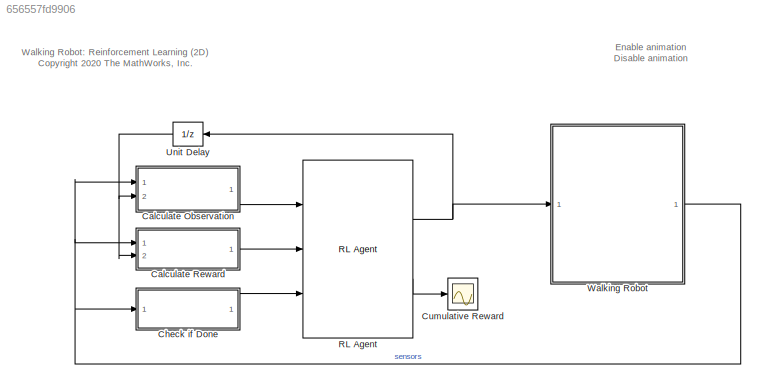
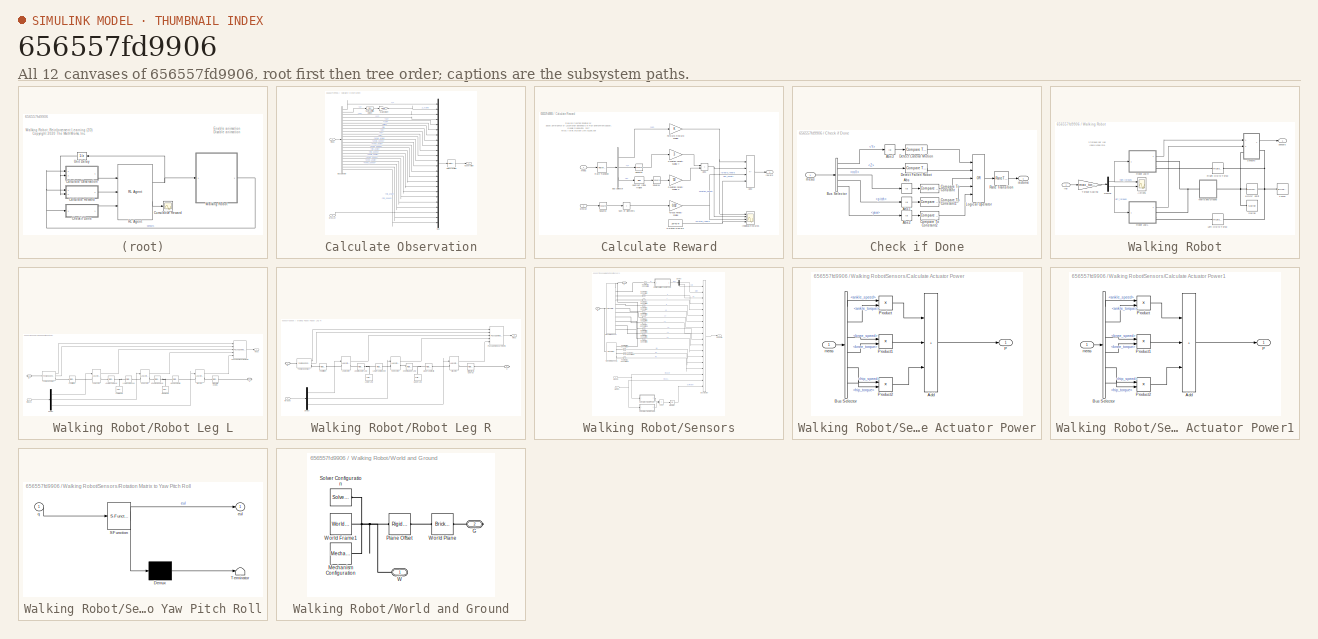
[diagram: thumbnail index - all 12 canvases of the model, root first then tree order]
MODEL slx_656557fd9906
KIND model
CONFIG AbsTol = auto
CONFIG EnableMultiTasking = on
CONFIG FixedStep = auto
CONFIG MaxStep = auto
CONFIG MinStep = auto
CONFIG RelTol = 1e-2
CONFIG SampleTimeConstraint = Unconstrained
CONFIG Solver = ode23t
CONFIG SolverName = ode23t
CONFIG StartTime = 0.0
CONFIG StopTime = Tf
BLOCK [SubSystem] Calculate Observation
  Ports = [2, 1]
  RequestExecContextInheritance = off
BLOCK [BusSelector] Calculate Observation/Bus Selector
  OutputSignals = Y,Z,VX,VY,VZ,yaw,pitch,roll,wx,wy,wz,measR.ankle_angle,measR.ankle_speed,measR.knee_angle,measR.knee_speed,measR.hip_angle,measR.hip_speed,measL.ankle_angle,measL.ankle_speed,measL.knee_angle,measL.knee_speed,measL.hip_angle,measL.hip_speed
  Ports = [1, 23]
BLOCK [Mux] Calculate Observation/Mux
  DisplayOption = bar
  Inputs = 24
  Ports = [24, 1]
BLOCK [RateTransition] Calculate Observation/Rate Transition
BLOCK [Gain] Calculate Observation/Scale Height
  Gain = 1/0.05
BLOCK [Bias] Calculate Observation/Subtract Initial Height
  Bias = -init_height/100
  SaturateOnIntegerOverflow = off
BLOCK [Inport] Calculate Observation/meas
BLOCK [Outport] Calculate Observation/observation
  VectorParamsAs1DForOutWhenUnconnected = off
BLOCK [Inport] Calculate Observation/prevAct
  Port = 2
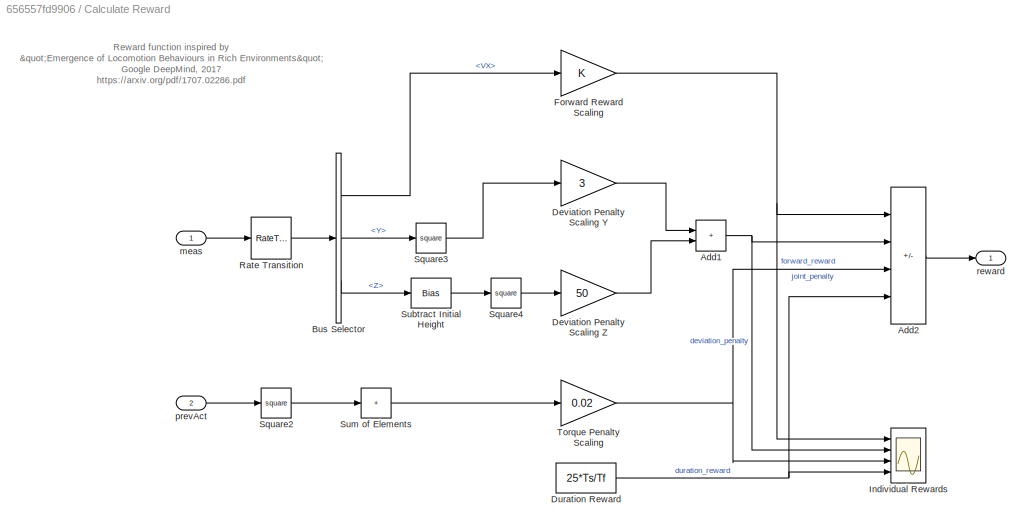
BLOCK [SubSystem] Calculate Reward
  Ports = [2, 1]
  RequestExecContextInheritance = off
BLOCK [Sum] Calculate Reward/Add1
  IconShape = rectangular
  Ports = [2, 1]
BLOCK [Sum] Calculate Reward/Add2
  IconShape = rectangular
  Inputs = +--+
  Ports = [4, 1]
BLOCK [BusSelector] Calculate Reward/Bus Selector
  OutputSignals = VX,Y,Z
  Ports = [1, 3]
BLOCK [Gain] Calculate Reward/Deviation Penalty Scaling Y
  Gain = 3
BLOCK [Gain] Calculate Reward/Deviation Penalty Scaling Z
  Gain = 50
BLOCK [Constant] Calculate Reward/Duration Reward
  Value = 25*Ts/Tf
BLOCK [Gain] Calculate Reward/Forward Reward Scaling
BLOCK [Scope] Calculate Reward/Individual Rewards
  Floating = off
  NumInputPorts = 4
  Ports = [4]
  ScopeSpecificationString = Simulink.scopes.TimeScopeBlockCfg('CurrentConfiguration', extmgr.ConfigurationSet(extmgr.Configuration('Core','General UI',true),extmgr.Configuration('Core','Source UI',true),extmgr.Configuration('Sources','WiredSimulink',true,'DataLoggingVariableName','ScopeData1'),extmgr.Configuration('Visuals','Time Domain',true,'SerializedDisplays',{struct('MinYLimReal','-0.10269','MaxYLimReal','0.92421','YLab...<+1411ch>
BLOCK [RateTransition] Calculate Reward/Rate Transition
  OutPortSampleTime = Ts
BLOCK [Math] Calculate Reward/Square2
  Operator = square
  Ports = [1, 1]
  SignedPower = on
BLOCK [Math] Calculate Reward/Square3
  Operator = square
  Ports = [1, 1]
  SignedPower = on
BLOCK [Math] Calculate Reward/Square4
  Operator = square
  Ports = [1, 1]
  SignedPower = on
BLOCK [Bias] Calculate Reward/Subtract Initial Height
  Bias = -init_height/100
  SaturateOnIntegerOverflow = off
BLOCK [Sum] Calculate Reward/Sum of Elements
  IconShape = rectangular
  Inputs = +
  Ports = [1, 1]
BLOCK [Gain] Calculate Reward/Torque Penalty Scaling
  Gain = 0.02
BLOCK [Inport] Calculate Reward/meas
BLOCK [Inport] Calculate Reward/prevAct
  Port = 2
BLOCK [Outport] Calculate Reward/reward
  VectorParamsAs1DForOutWhenUnconnected = off
BLOCK [SubSystem] Check if Done
  Ports = [1, 1]
  RequestExecContextInheritance = off
BLOCK [Abs] Check if Done/Abs
  SaturateOnIntegerOverflow = off
BLOCK [Abs] Check if Done/Abs1
  SaturateOnIntegerOverflow = off
BLOCK [Abs] Check if Done/Abs2
  SaturateOnIntegerOverflow = off
BLOCK [Abs] Check if Done/Abs3
  SaturateOnIntegerOverflow = off
BLOCK [BusSelector] Check if Done/Bus Selector
  OutputSignals = Y,Z,roll,pitch,yaw
  Ports = [1, 5]
BLOCK [Reference] Check if Done/Compare To Constant  REF=simulink/Logic and Bit
Operations/Compare
To Constant
  Ports = [1, 1]
  SourceBlock = simulink/Logic and Bit\nOperations/Compare\nTo Constant
  SourceProductBaseCode = SL
  SourceType = Compare To Constant
BLOCK [Reference] Check if Done/Compare To Constant1  REF=simulink/Logic and Bit
Operations/Compare
To Constant
  Ports = [1, 1]
  SourceBlock = simulink/Logic and Bit\nOperations/Compare\nTo Constant
  SourceProductBaseCode = SL
  SourceType = Compare To Constant
BLOCK [Reference] Check if Done/Compare To Constant2  REF=simulink/Logic and Bit
Operations/Compare
To Constant
  Ports = [1, 1]
  SourceBlock = simulink/Logic and Bit\nOperations/Compare\nTo Constant
  SourceProductBaseCode = SL
  SourceType = Compare To Constant
BLOCK [Reference] Check if Done/Detect Fallen Robot  REF=simulink/Logic and Bit
Operations/Compare
To Constant
  Ports = [1, 1]
  SourceBlock = simulink/Logic and Bit\nOperations/Compare\nTo Constant
  SourceProductBaseCode = SL
  SourceType = Compare To Constant
BLOCK [Reference] Check if Done/Detect Lateral Motion  REF=simulink/Logic and Bit
Operations/Compare
To Constant
  Ports = [1, 1]
  SourceBlock = simulink/Logic and Bit\nOperations/Compare\nTo Constant
  SourceProductBaseCode = SL
  SourceType = Compare To Constant
BLOCK [Logic] Check if Done/Logical Operator
  AllPortsSameDT = off
  Inputs = 5
  Operator = OR
  OutDataTypeStr = boolean
  Ports = [5, 1]
BLOCK [RateTransition] Check if Done/Rate Transition
BLOCK [Outport] Check if Done/isdone
  VectorParamsAs1DForOutWhenUnconnected = off
BLOCK [Inport] Check if Done/meas
BLOCK [Scope] Cumulative Reward
  Floating = off
  NumInputPorts = 1
  Ports = [1]
  ScopeSpecificationString = Simulink.scopes.TimeScopeBlockCfg('CurrentConfiguration', extmgr.ConfigurationSet(extmgr.Configuration('Core','General UI',true),extmgr.Configuration('Core','Source UI',true),extmgr.Configuration('Sources','WiredSimulink',true),extmgr.Configuration('Visuals','Time Domain',true,'SerializedDisplays',{struct('MinYLimReal','-10.78489','MaxYLimReal','97.06402','YLabelReal','','MinYLimMag','0.00000','Ma...<+1380ch>
BLOCK [Reference] RL Agent  REF=rllib/RL Agent
  Ports = [3, 2]
  SourceBlock = rllib/RL Agent
  SourceProductBaseCode = RL
  SourceType = RL Agent
BLOCK [UnitDelay] Unit Delay
  HasFrameUpgradeWarning = on
  SampleTime = -1
BLOCK [SubSystem] Walking Robot
  Ports = [1, 1]
  RequestExecContextInheritance = off
BLOCK [Reference] Walking Robot/6-DOF Joint  REF=sm_lib/Joints/6-DOF Joint
  Ports = [0, 0, 0, 0, 0, 1, 1]
  SourceBlock = sm_lib/Joints/6-DOF Joint
  SourceProductBaseCode = MS
  SourceType = 6-DOF Joint
BLOCK [Scope] Walking Robot/Actions
  Floating = off
  NumInputPorts = 2
  Ports = [2]
  ScopeSpecificationString = Simulink.scopes.TimeScopeBlockCfg('CurrentConfiguration', extmgr.ConfigurationSet(extmgr.Configuration('Core','General UI',true),extmgr.Configuration('Core','Source UI',true),extmgr.Configuration('Sources','WiredSimulink',true,'DataLoggingVariableName','ScopeData1'),extmgr.Configuration('Visuals','Time Domain',true,'SerializedDisplays',{struct('MinYLimReal','-3.75','MaxYLimReal','3.75','YLabelReal...<+2095ch>
BLOCK [Demux] Walking Robot/Demux
  Outputs = 2
  Ports = [1, 2]
BLOCK [Reference] Walking Robot/Left Hip to Torso  REF=sm_lib/Frames and
Transforms/Rigid
Transform
  Ports = [0, 0, 0, 0, 0, 1, 1]
  SourceBlock = sm_lib/Frames and\nTransforms/Rigid\nTransform
  SourceProductBaseCode = MS
  SourceType = Rigid\nTransform
BLOCK [Reference] Walking Robot/Right Hip to Torso  REF=sm_lib/Frames and
Transforms/Rigid
Transform
  Ports = [0, 0, 0, 0, 0, 1, 1]
  SourceBlock = sm_lib/Frames and\nTransforms/Rigid\nTransform
  SourceProductBaseCode = MS
  SourceType = Rigid\nTransform
BLOCK [SubSystem] Walking Robot/Robot Leg L
  Ports = [1, 1, 0, 0, 0, 0, 2]
  RequestExecContextInheritance = off
BLOCK [Reference] Walking Robot/Robot Leg L/Ankle Joint  REF=walkingRobotUtils/Leg Joint with Limits
  Ports = [1, 1, 0, 0, 0, 1, 1]
  SourceBlock = walkingRobotUtils/Leg Joint with Limits
  SourceType = Leg Joint with Limits
BLOCK [Reference] Walking Robot/Robot Leg L/Ankle to Lower Leg  REF=sm_lib/Frames and
Transforms/Rigid
Transform
  Ports = [0, 0, 0, 0, 0, 1, 1]
  SourceBlock = sm_lib/Frames and\nTransforms/Rigid\nTransform
  SourceProductBaseCode = MS
  SourceType = Rigid\nTransform
BLOCK [Demux] Walking Robot/Robot Leg L/Demux
  Outputs = 3
  Ports = [1, 3]
BLOCK [Reference] Walking Robot/Robot Leg L/Foot Offset  REF=sm_lib/Frames and
Transforms/Rigid
Transform
  Ports = [0, 0, 0, 0, 0, 1, 1]
  SourceBlock = sm_lib/Frames and\nTransforms/Rigid\nTransform
  SourceProductBaseCode = MS
  SourceType = Rigid\nTransform
BLOCK [Reference] Walking Robot/Robot Leg L/Foot and Contact  REF=walkingRobotUtils/Foot and Contact
  Ports = [0, 2, 0, 0, 0, 1, 1]
  SourceBlock = walkingRobotUtils/Foot and Contact
  SourceType = SubSystem
BLOCK [PMIOPort] Walking Robot/Robot Leg L/G
  Side = Right
BLOCK [PMIOPort] Walking Robot/Robot Leg L/H
  Port = 2
  Side = Right
BLOCK [Reference] Walking Robot/Robot Leg L/Hip Joint  REF=walkingRobotUtils/Leg Joint with Limits
  Ports = [1, 1, 0, 0, 0, 1, 1]
  SourceBlock = walkingRobotUtils/Leg Joint with Limits
  SourceType = Leg Joint with Limits
BLOCK [Reference] Walking Robot/Robot Leg L/Hip to World Coords  REF=sm_lib/Frames and
Transforms/Rigid
Transform
  Ports = [0, 0, 0, 0, 0, 1, 1]
  SourceBlock = sm_lib/Frames and\nTransforms/Rigid\nTransform
  SourceProductBaseCode = MS
  SourceType = Rigid\nTransform
BLOCK [Reference] Walking Robot/Robot Leg L/Knee Joint  REF=walkingRobotUtils/Leg Joint with Limits
  Ports = [1, 1, 0, 0, 0, 1, 1]
  SourceBlock = walkingRobotUtils/Leg Joint with Limits
  SourceType = Leg Joint with Limits
BLOCK [Reference] Walking Robot/Robot Leg L/Knee to Upper Leg  REF=sm_lib/Frames and
Transforms/Rigid
Transform
  Ports = [0, 0, 0, 0, 0, 1, 1]
  SourceBlock = sm_lib/Frames and\nTransforms/Rigid\nTransform
  SourceProductBaseCode = MS
  SourceType = Rigid\nTransform
BLOCK [Reference] Walking Robot/Robot Leg L/Lower Leg  REF=sm_lib/Body Elements/Cylindrical Solid
  NameLocation = right
  Ports = [0, 0, 0, 0, 0, 0, 1]
  SourceBlock = sm_lib/Body Elements/Cylindrical Solid
  SourceProductBaseCode = MS
  SourceType = Cylindrical Solid
BLOCK [Reference] Walking Robot/Robot Leg L/Lower Leg to Knee  REF=sm_lib/Frames and
Transforms/Rigid
Transform
  Ports = [0, 0, 0, 0, 0, 1, 1]
  SourceBlock = sm_lib/Frames and\nTransforms/Rigid\nTransform
  SourceProductBaseCode = MS
  SourceType = Rigid\nTransform
BLOCK [Reference] Walking Robot/Robot Leg L/Package Measurements  REF=walkingRobotUtils/Package 
Measurements 2D
  Ports = [5, 1]
  SourceBlock = walkingRobotUtils/Package \nMeasurements 2D
  SourceType = SubSystem
BLOCK [Reference] Walking Robot/Robot Leg L/Upper Leg  REF=sm_lib/Body Elements/Cylindrical Solid
  NameLocation = right
  Ports = [0, 0, 0, 0, 0, 0, 1]
  SourceBlock = sm_lib/Body Elements/Cylindrical Solid
  SourceProductBaseCode = MS
  SourceType = Cylindrical Solid
BLOCK [Reference] Walking Robot/Robot Leg L/Upper Leg to Hip  REF=sm_lib/Frames and
Transforms/Rigid
Transform
  Ports = [0, 0, 0, 0, 0, 1, 1]
  SourceBlock = sm_lib/Frames and\nTransforms/Rigid\nTransform
  SourceProductBaseCode = MS
  SourceType = Rigid\nTransform
BLOCK [Outport] Walking Robot/Robot Leg L/meas
  VectorParamsAs1DForOutWhenUnconnected = off
BLOCK [Inport] Walking Robot/Robot Leg L/torques
BLOCK [SubSystem] Walking Robot/Robot Leg R
  Ports = [1, 1, 0, 0, 0, 0, 2]
  RequestExecContextInheritance = off
BLOCK [Reference] Walking Robot/Robot Leg R/Ankle Joint  REF=walkingRobotUtils/Leg Joint with Limits
  Ports = [1, 1, 0, 0, 0, 1, 1]
  SourceBlock = walkingRobotUtils/Leg Joint with Limits
  SourceType = Leg Joint with Limits
BLOCK [Reference] Walking Robot/Robot Leg R/Ankle to Lower Leg  REF=sm_lib/Frames and
Transforms/Rigid
Transform
  Ports = [0, 0, 0, 0, 0, 1, 1]
  SourceBlock = sm_lib/Frames and\nTransforms/Rigid\nTransform
  SourceProductBaseCode = MS
  SourceType = Rigid\nTransform
BLOCK [Demux] Walking Robot/Robot Leg R/Demux
  Outputs = 3
  Ports = [1, 3]
BLOCK [Reference] Walking Robot/Robot Leg R/Foot Offset  REF=sm_lib/Frames and
Transforms/Rigid
Transform
  Ports = [0, 0, 0, 0, 0, 1, 1]
  SourceBlock = sm_lib/Frames and\nTransforms/Rigid\nTransform
  SourceProductBaseCode = MS
  SourceType = Rigid\nTransform
BLOCK [Reference] Walking Robot/Robot Leg R/Foot and Contact  REF=walkingRobotUtils/Foot and Contact
  Ports = [0, 2, 0, 0, 0, 1, 1]
  SourceBlock = walkingRobotUtils/Foot and Contact
  SourceType = SubSystem
BLOCK [PMIOPort] Walking Robot/Robot Leg R/G
  Side = Right
BLOCK [PMIOPort] Walking Robot/Robot Leg R/H
  Port = 2
  Side = Right
BLOCK [Reference] Walking Robot/Robot Leg R/Hip Joint  REF=walkingRobotUtils/Leg Joint with Limits
  Ports = [1, 1, 0, 0, 0, 1, 1]
  SourceBlock = walkingRobotUtils/Leg Joint with Limits
  SourceType = Leg Joint with Limits
BLOCK [Reference] Walking Robot/Robot Leg R/Hip to World Coords  REF=sm_lib/Frames and
Transforms/Rigid
Transform
  Ports = [0, 0, 0, 0, 0, 1, 1]
  SourceBlock = sm_lib/Frames and\nTransforms/Rigid\nTransform
  SourceProductBaseCode = MS
  SourceType = Rigid\nTransform
BLOCK [Reference] Walking Robot/Robot Leg R/Knee Joint  REF=walkingRobotUtils/Leg Joint with Limits
  Ports = [1, 1, 0, 0, 0, 1, 1]
  SourceBlock = walkingRobotUtils/Leg Joint with Limits
  SourceType = Leg Joint with Limits
BLOCK [Reference] Walking Robot/Robot Leg R/Knee to Upper Leg  REF=sm_lib/Frames and
Transforms/Rigid
Transform
  Ports = [0, 0, 0, 0, 0, 1, 1]
  SourceBlock = sm_lib/Frames and\nTransforms/Rigid\nTransform
  SourceProductBaseCode = MS
  SourceType = Rigid\nTransform
BLOCK [Reference] Walking Robot/Robot Leg R/Lower Leg  REF=sm_lib/Body Elements/Cylindrical Solid
  NameLocation = right
  Ports = [0, 0, 0, 0, 0, 0, 1]
  SourceBlock = sm_lib/Body Elements/Cylindrical Solid
  SourceProductBaseCode = MS
  SourceType = Cylindrical Solid
BLOCK [Reference] Walking Robot/Robot Leg R/Lower Leg to Knee  REF=sm_lib/Frames and
Transforms/Rigid
Transform
  Ports = [0, 0, 0, 0, 0, 1, 1]
  SourceBlock = sm_lib/Frames and\nTransforms/Rigid\nTransform
  SourceProductBaseCode = MS
  SourceType = Rigid\nTransform
BLOCK [Reference] Walking Robot/Robot Leg R/Package Measurements  REF=walkingRobotUtils/Package 
Measurements 2D
  Ports = [5, 1]
  SourceBlock = walkingRobotUtils/Package \nMeasurements 2D
  SourceType = SubSystem
BLOCK [Reference] Walking Robot/Robot Leg R/Upper Leg  REF=sm_lib/Body Elements/Cylindrical Solid
  NameLocation = right
  Ports = [0, 0, 0, 0, 0, 0, 1]
  SourceBlock = sm_lib/Body Elements/Cylindrical Solid
  SourceProductBaseCode = MS
  SourceType = Cylindrical Solid
BLOCK [Reference] Walking Robot/Robot Leg R/Upper Leg to Hip  REF=sm_lib/Frames and
Transforms/Rigid
Transform
  Ports = [0, 0, 0, 0, 0, 1, 1]
  SourceBlock = sm_lib/Frames and\nTransforms/Rigid\nTransform
  SourceProductBaseCode = MS
  SourceType = Rigid\nTransform
BLOCK [Outport] Walking Robot/Robot Leg R/meas
  VectorParamsAs1DForOutWhenUnconnected = off
BLOCK [Inport] Walking Robot/Robot Leg R/torques
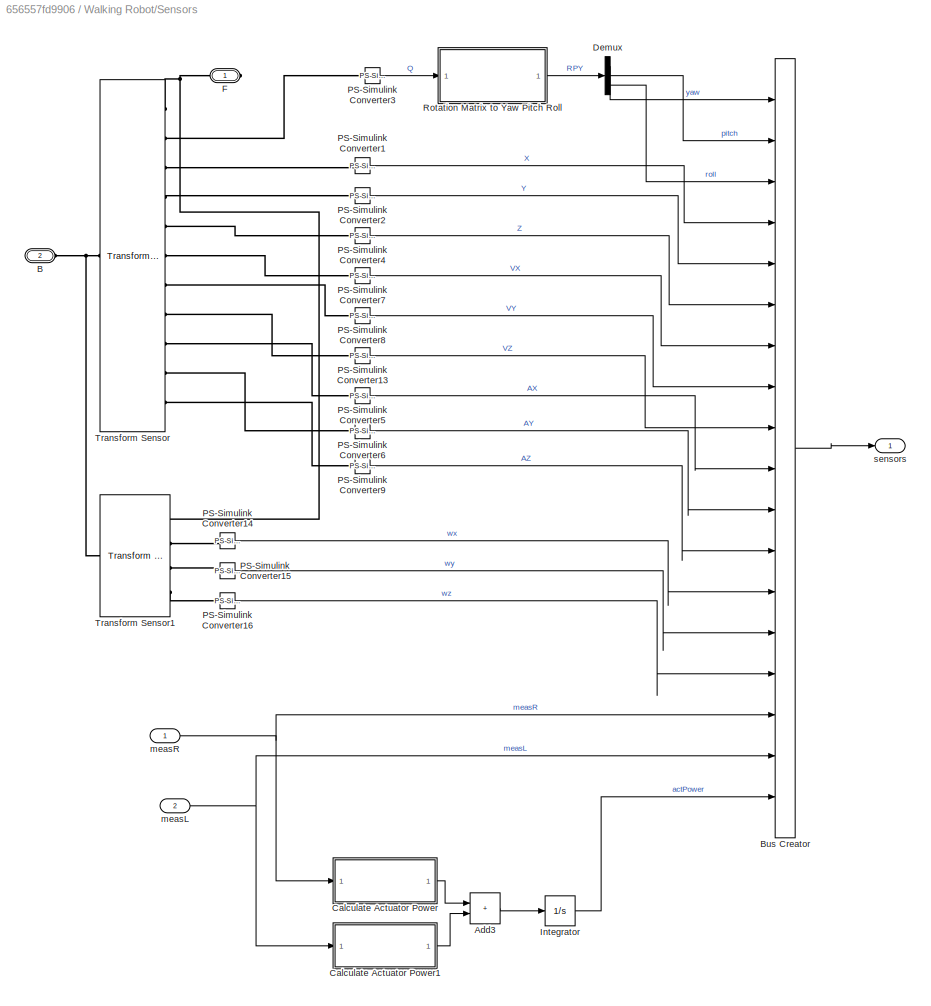
BLOCK [SubSystem] Walking Robot/Sensors
  Ports = [2, 1, 0, 0, 0, 1, 1]
  RequestExecContextInheritance = off
BLOCK [Sum] Walking Robot/Sensors/Add3
  IconShape = rectangular
  Ports = [2, 1]
BLOCK [PMIOPort] Walking Robot/Sensors/B
  Port = 2
  Side = Left
BLOCK [BusCreator] Walking Robot/Sensors/Bus Creator
  DisplayOption = bar
  InheritFromInputs = on
  Inputs = 18
  Ports = [18, 1]
BLOCK [SubSystem] Walking Robot/Sensors/Calculate Actuator Power
  Ports = [1, 1]
  RequestExecContextInheritance = off
BLOCK [Sum] Walking Robot/Sensors/Calculate Actuator Power/Add
  IconShape = rectangular
  Inputs = 3
  Ports = [3, 1]
BLOCK [BusSelector] Walking Robot/Sensors/Calculate Actuator Power/Bus Selector
  OutputSignals = ankle_speed,ankle_torque,knee_speed,knee_torque,hip_speed,hip_torque
  Ports = [1, 6]
BLOCK [Outport] Walking Robot/Sensors/Calculate Actuator Power/P
  VectorParamsAs1DForOutWhenUnconnected = off
BLOCK [Product] Walking Robot/Sensors/Calculate Actuator Power/Product
  Ports = [2, 1]
BLOCK [Product] Walking Robot/Sensors/Calculate Actuator Power/Product1
  Ports = [2, 1]
BLOCK [Product] Walking Robot/Sensors/Calculate Actuator Power/Product2
  Ports = [2, 1]
BLOCK [Inport] Walking Robot/Sensors/Calculate Actuator Power/meas
BLOCK [SubSystem] Walking Robot/Sensors/Calculate Actuator Power1
  Ports = [1, 1]
  RequestExecContextInheritance = off
BLOCK [Sum] Walking Robot/Sensors/Calculate Actuator Power1/Add
  IconShape = rectangular
  Inputs = 3
  Ports = [3, 1]
BLOCK [BusSelector] Walking Robot/Sensors/Calculate Actuator Power1/Bus Selector
  OutputSignals = ankle_speed,ankle_torque,knee_speed,knee_torque,hip_speed,hip_torque
  Ports = [1, 6]
BLOCK [Outport] Walking Robot/Sensors/Calculate Actuator Power1/P
  VectorParamsAs1DForOutWhenUnconnected = off
BLOCK [Product] Walking Robot/Sensors/Calculate Actuator Power1/Product
  Ports = [2, 1]
BLOCK [Product] Walking Robot/Sensors/Calculate Actuator Power1/Product1
  Ports = [2, 1]
BLOCK [Product] Walking Robot/Sensors/Calculate Actuator Power1/Product2
  Ports = [2, 1]
BLOCK [Inport] Walking Robot/Sensors/Calculate Actuator Power1/meas
BLOCK [Demux] Walking Robot/Sensors/Demux
  Outputs = 3
  Ports = [1, 3]
BLOCK [PMIOPort] Walking Robot/Sensors/F
  Side = Right
BLOCK [Integrator] Walking Robot/Sensors/Integrator
  Ports = [1, 1]
BLOCK [Reference] Walking Robot/Sensors/PS-Simulink Converter1  REF=nesl_utility/PS-Simulink
Converter
  Ports = [0, 1, 0, 0, 0, 1]
  SourceBlock = nesl_utility/PS-Simulink\nConverter
  SourceProductBaseCode = MT,SS
  SourceType = PS-Simulink\nConverter
BLOCK [Reference] Walking Robot/Sensors/PS-Simulink Converter13  REF=nesl_utility/PS-Simulink
Converter
  Ports = [0, 1, 0, 0, 0, 1]
  SourceBlock = nesl_utility/PS-Simulink\nConverter
  SourceProductBaseCode = MT,SS
  SourceType = PS-Simulink\nConverter
BLOCK [Reference] Walking Robot/Sensors/PS-Simulink Converter14  REF=nesl_utility/PS-Simulink
Converter
  Ports = [0, 1, 0, 0, 0, 1]
  SourceBlock = nesl_utility/PS-Simulink\nConverter
  SourceProductBaseCode = MT,SS
  SourceType = PS-Simulink\nConverter
BLOCK [Reference] Walking Robot/Sensors/PS-Simulink Converter15  REF=nesl_utility/PS-Simulink
Converter
  Ports = [0, 1, 0, 0, 0, 1]
  SourceBlock = nesl_utility/PS-Simulink\nConverter
  SourceProductBaseCode = MT,SS
  SourceType = PS-Simulink\nConverter
BLOCK [Reference] Walking Robot/Sensors/PS-Simulink Converter16  REF=nesl_utility/PS-Simulink
Converter
  Ports = [0, 1, 0, 0, 0, 1]
  SourceBlock = nesl_utility/PS-Simulink\nConverter
  SourceProductBaseCode = MT,SS
  SourceType = PS-Simulink\nConverter
BLOCK [Reference] Walking Robot/Sensors/PS-Simulink Converter2  REF=nesl_utility/PS-Simulink
Converter
  Ports = [0, 1, 0, 0, 0, 1]
  SourceBlock = nesl_utility/PS-Simulink\nConverter
  SourceProductBaseCode = MT,SS
  SourceType = PS-Simulink\nConverter
BLOCK [Reference] Walking Robot/Sensors/PS-Simulink Converter3  REF=nesl_utility/PS-Simulink
Converter
  Ports = [0, 1, 0, 0, 0, 1]
  SourceBlock = nesl_utility/PS-Simulink\nConverter
  SourceProductBaseCode = MT,SS
  SourceType = PS-Simulink\nConverter
BLOCK [Reference] Walking Robot/Sensors/PS-Simulink Converter4  REF=nesl_utility/PS-Simulink
Converter
  Ports = [0, 1, 0, 0, 0, 1]
  SourceBlock = nesl_utility/PS-Simulink\nConverter
  SourceProductBaseCode = MT,SS
  SourceType = PS-Simulink\nConverter
BLOCK [Reference] Walking Robot/Sensors/PS-Simulink Converter5  REF=nesl_utility/PS-Simulink
Converter
  Ports = [0, 1, 0, 0, 0, 1]
  SourceBlock = nesl_utility/PS-Simulink\nConverter
  SourceProductBaseCode = MT,SS
  SourceType = PS-Simulink\nConverter
BLOCK [Reference] Walking Robot/Sensors/PS-Simulink Converter6  REF=nesl_utility/PS-Simulink
Converter
  Ports = [0, 1, 0, 0, 0, 1]
  SourceBlock = nesl_utility/PS-Simulink\nConverter
  SourceProductBaseCode = MT,SS
  SourceType = PS-Simulink\nConverter
BLOCK [Reference] Walking Robot/Sensors/PS-Simulink Converter7  REF=nesl_utility/PS-Simulink
Converter
  Ports = [0, 1, 0, 0, 0, 1]
  SourceBlock = nesl_utility/PS-Simulink\nConverter
  SourceProductBaseCode = MT,SS
  SourceType = PS-Simulink\nConverter
BLOCK [Reference] Walking Robot/Sensors/PS-Simulink Converter8  REF=nesl_utility/PS-Simulink
Converter
  Ports = [0, 1, 0, 0, 0, 1]
  SourceBlock = nesl_utility/PS-Simulink\nConverter
  SourceProductBaseCode = MT,SS
  SourceType = PS-Simulink\nConverter
BLOCK [Reference] Walking Robot/Sensors/PS-Simulink Converter9  REF=nesl_utility/PS-Simulink
Converter
  Ports = [0, 1, 0, 0, 0, 1]
  SourceBlock = nesl_utility/PS-Simulink\nConverter
  SourceProductBaseCode = MT,SS
  SourceType = PS-Simulink\nConverter
BLOCK [SubSystem] Walking Robot/Sensors/Rotation Matrix to Yaw Pitch Roll
  ErrorFcn = Stateflow.Translate.translate
  PermitHierarchicalResolution = ExplicitOnly
  Ports = [1, 1]
  RequestExecContextInheritance = off
  SFBlockType = MATLAB Function
  TreatAsAtomicUnit = on
BLOCK [Demux] Walking Robot/Sensors/Rotation Matrix to Yaw Pitch Roll/ Demux 
  Outputs = 1
  Ports = [1, 1]
BLOCK [S-Function] Walking Robot/Sensors/Rotation Matrix to Yaw Pitch Roll/ SFunction 
  EnableBusSupport = off
  FunctionName = sf_sfun
  PortCounts = [1 2]
  Ports = [1, 2]
  SFcnIsStateOwnerBlock = off
  SFunctionDeploymentMode = off
  Tag = Stateflow S-Function 1
BLOCK [Terminator] Walking Robot/Sensors/Rotation Matrix to Yaw Pitch Roll/ Terminator 
BLOCK [Outport] Walking Robot/Sensors/Rotation Matrix to Yaw Pitch Roll/eul
  VectorParamsAs1DForOutWhenUnconnected = off
BLOCK [Inport] Walking Robot/Sensors/Rotation Matrix to Yaw Pitch Roll/q
BLOCK [Reference] Walking Robot/Sensors/Transform Sensor  REF=sm_lib/Frames and
Transforms/Transform
Sensor
  Ports = [0, 0, 0, 0, 0, 1, 11]
  SourceBlock = sm_lib/Frames and\nTransforms/Transform\nSensor
  SourceProductBaseCode = MS
  SourceType = Transform\nSensor
BLOCK [Reference] Walking Robot/Sensors/Transform Sensor1  REF=sm_lib/Frames and
Transforms/Transform
Sensor
  Ports = [0, 0, 0, 0, 0, 1, 4]
  SourceBlock = sm_lib/Frames and\nTransforms/Transform\nSensor
  SourceProductBaseCode = MS
  SourceType = Transform\nSensor
BLOCK [Inport] Walking Robot/Sensors/measL
  Port = 2
BLOCK [Inport] Walking Robot/Sensors/measR
BLOCK [Outport] Walking Robot/Sensors/sensors
  VectorParamsAs1DForOutWhenUnconnected = off
BLOCK [Reference] Walking Robot/Spline  REF=sm_lib/Curves and Surfaces/Spline
  Ports = [0, 0, 0, 0, 0, 1, 1]
  SourceBlock = sm_lib/Curves and Surfaces/Spline
  SourceProductBaseCode = MS
  SourceType = Spline
BLOCK [Gain] Walking Robot/Torque Scaling
  Gain = max_torque
BLOCK [Reference] Walking Robot/Torso  REF=sm_lib/Body Elements/Brick Solid
  Ports = [0, 0, 0, 0, 0, 0, 1]
  SourceBlock = sm_lib/Body Elements/Brick Solid
  SourceProductBaseCode = MS
  SourceType = Brick Solid
BLOCK [SubSystem] Walking Robot/World and Ground
  Ports = [0, 0, 0, 0, 0, 1, 1]
  RequestExecContextInheritance = off
BLOCK [PMIOPort] Walking Robot/World and Ground/G
  Port = 2
  Side = Right
BLOCK [Reference] Walking Robot/World and Ground/Mechanism Configuration  REF=sm_lib/Utilities/Mechanism
Configuration
  Ports = [0, 0, 0, 0, 0, 0, 1]
  SourceBlock = sm_lib/Utilities/Mechanism\nConfiguration
  SourceProductBaseCode = MS
  SourceType = Mechanism\nConfiguration
BLOCK [Reference] Walking Robot/World and Ground/Plane Offset  REF=sm_lib/Frames and
Transforms/Rigid
Transform
  Ports = [0, 0, 0, 0, 0, 1, 1]
  SourceBlock = sm_lib/Frames and\nTransforms/Rigid\nTransform
  SourceProductBaseCode = MS
  SourceType = Rigid\nTransform
BLOCK [Reference] Walking Robot/World and Ground/Solver Configuration  REF=nesl_utility/Solver
Configuration
  Ports = [0, 0, 0, 0, 0, 0, 1]
  SourceBlock = nesl_utility/Solver\nConfiguration
  SourceProductBaseCode = MT,SS
  SourceType = Solver\nConfiguration
BLOCK [PMIOPort] Walking Robot/World and Ground/W
  Side = Left
BLOCK [Reference] Walking Robot/World and Ground/World Frame1  REF=sm_lib/Frames and
Transforms/World Frame
  Ports = [0, 0, 0, 0, 0, 0, 1]
  SourceBlock = sm_lib/Frames and\nTransforms/World Frame
  SourceProductBaseCode = MS
  SourceType = World Frame
BLOCK [Reference] Walking Robot/World and Ground/World Plane  REF=sm_lib/Body Elements/Brick Solid
  Ports = [0, 0, 0, 0, 0, 1, 1]
  SourceBlock = sm_lib/Body Elements/Brick Solid
  SourceProductBaseCode = MS
  SourceType = Brick Solid
BLOCK [Inport] Walking Robot/inp
BLOCK [Outport] Walking Robot/sensors
  VectorParamsAs1DForOutWhenUnconnected = off
ANNOTATION (root): Walking Robot: Reinforcement Learning (2D) <copyright redacted>
ANNOTATION (root): Enable animation Disable animation
ANNOTATION Calculate Reward: Reward function inspired by "Emergence of Locomotion Behaviours in Rich Environments" Google DeepMind, 2017 https://arxiv.org/pdf/1707.02286.pdf
ANNOTATION Walking Robot: 3 torques per leg (ankle knee hip)
LINE Calculate Observation/Bus Selector:1 -> Calculate Observation/Mux:1
LINE Calculate Observation/Bus Selector:10 -> Calculate Observation/Mux:10
LINE Calculate Observation/Bus Selector:11 -> Calculate Observation/Mux:11
LINE Calculate Observation/Bus Selector:12 -> Calculate Observation/Mux:12
LINE Calculate Observation/Bus Selector:13 -> Calculate Observation/Mux:13
LINE Calculate Observation/Bus Selector:14 -> Calculate Observation/Mux:14
LINE Calculate Observation/Bus Selector:15 -> Calculate Observation/Mux:15
LINE Calculate Observation/Bus Selector:16 -> Calculate Observation/Mux:16
LINE Calculate Observation/Bus Selector:17 -> Calculate Observation/Mux:17
LINE Calculate Observation/Bus Selector:18 -> Calculate Observation/Mux:18
LINE Calculate Observation/Bus Selector:19 -> Calculate Observation/Mux:19
LINE Calculate Observation/Bus Selector:2 -> Calculate Observation/Subtract Initial Height:1
LINE Calculate Observation/Bus Selector:20 -> Calculate Observation/Mux:20
LINE Calculate Observation/Bus Selector:21 -> Calculate Observation/Mux:21
LINE Calculate Observation/Bus Selector:22 -> Calculate Observation/Mux:23
LINE Calculate Observation/Bus Selector:23 -> Calculate Observation/Mux:24
LINE Calculate Observation/Bus Selector:3 -> Calculate Observation/Mux:3
LINE Calculate Observation/Bus Selector:4 -> Calculate Observation/Mux:4
LINE Calculate Observation/Bus Selector:5 -> Calculate Observation/Mux:5
LINE Calculate Observation/Bus Selector:6 -> Calculate Observation/Mux:6
LINE Calculate Observation/Bus Selector:7 -> Calculate Observation/Mux:7
LINE Calculate Observation/Bus Selector:8 -> Calculate Observation/Mux:8
LINE Calculate Observation/Bus Selector:9 -> Calculate Observation/Mux:9
LINE Calculate Observation/Mux:1 -> Calculate Observation/Rate Transition:1
LINE Calculate Observation/Rate Transition:1 -> Calculate Observation/observation:1
LINE Calculate Observation/Scale Height:1 -> Calculate Observation/Mux:2
LINE Calculate Observation/Subtract Initial Height:1 -> Calculate Observation/Scale Height:1
LINE Calculate Observation/meas:1 -> Calculate Observation/Bus Selector:1
LINE Calculate Observation/prevAct:1 -> Calculate Observation/Mux:22
LINE Calculate Observation:1 -> RL Agent:1
NET Calculate Reward/Add1:1 -> Calculate Reward/Add2:2, Calculate Reward/Individual Rewards:2
LINE Calculate Reward/Add2:1 -> Calculate Reward/reward:1
LINE Calculate Reward/Bus Selector:1 -> Calculate Reward/Forward Reward Scaling:1
LINE Calculate Reward/Bus Selector:2 -> Calculate Reward/Square3:1
LINE Calculate Reward/Bus Selector:3 -> Calculate Reward/Subtract Initial Height:1
LINE Calculate Reward/Deviation Penalty Scaling Y:1 -> Calculate Reward/Add1:1
LINE Calculate Reward/Deviation Penalty Scaling Z:1 -> Calculate Reward/Add1:2
NET Calculate Reward/Duration Reward:1 -> Calculate Reward/Add2:4, Calculate Reward/Individual Rewards:4
NET Calculate Reward/Forward Reward Scaling:1 -> Calculate Reward/Add2:1, Calculate Reward/Individual Rewards:1
LINE Calculate Reward/Rate Transition:1 -> Calculate Reward/Bus Selector:1
LINE Calculate Reward/Square2:1 -> Calculate Reward/Sum of Elements:1
LINE Calculate Reward/Square3:1 -> Calculate Reward/Deviation Penalty Scaling Y:1
LINE Calculate Reward/Square4:1 -> Calculate Reward/Deviation Penalty Scaling Z:1
LINE Calculate Reward/Subtract Initial Height:1 -> Calculate Reward/Square4:1
LINE Calculate Reward/Sum of Elements:1 -> Calculate Reward/Torque Penalty Scaling:1
NET Calculate Reward/Torque Penalty Scaling:1 -> Calculate Reward/Add2:3, Calculate Reward/Individual Rewards:3
LINE Calculate Reward/meas:1 -> Calculate Reward/Rate Transition:1
LINE Calculate Reward/prevAct:1 -> Calculate Reward/Square2:1
LINE Calculate Reward:1 -> RL Agent:2
LINE Check if Done/Abs1:1 -> Check if Done/Compare To Constant1:1
LINE Check if Done/Abs2:1 -> Check if Done/Compare To Constant2:1
LINE Check if Done/Abs3:1 -> Check if Done/Detect Lateral Motion:1
LINE Check if Done/Abs:1 -> Check if Done/Compare To Constant:1
LINE Check if Done/Bus Selector:1 -> Check if Done/Abs3:1
LINE Check if Done/Bus Selector:2 -> Check if Done/Detect Fallen Robot:1
LINE Check if Done/Bus Selector:3 -> Check if Done/Abs:1
LINE Check if Done/Bus Selector:4 -> Check if Done/Abs1:1
LINE Check if Done/Bus Selector:5 -> Check if Done/Abs2:1
LINE Check if Done/Compare To Constant1:1 -> Check if Done/Logical Operator:4
LINE Check if Done/Compare To Constant2:1 -> Check if Done/Logical Operator:5
LINE Check if Done/Compare To Constant:1 -> Check if Done/Logical Operator:3
LINE Check if Done/Detect Fallen Robot:1 -> Check if Done/Logical Operator:2
LINE Check if Done/Detect Lateral Motion:1 -> Check if Done/Logical Operator:1
LINE Check if Done/Logical Operator:1 -> Check if Done/Rate Transition:1
LINE Check if Done/Rate Transition:1 -> Check if Done/isdone:1
LINE Check if Done/meas:1 -> Check if Done/Bus Selector:1
LINE Check if Done:1 -> RL Agent:3
NET RL Agent:1 -> Unit Delay:1, Walking Robot:1
LINE RL Agent:2 -> Cumulative Reward:1
NET Unit Delay:1 -> Calculate Observation:2, Calculate Reward:2
NET Walking Robot/Demux:1 -> Walking Robot/Actions:1, Walking Robot/Robot Leg R:1
NET Walking Robot/Demux:2 -> Walking Robot/Actions:2, Walking Robot/Robot Leg L:1
LINE Walking Robot/Robot Leg L/Ankle Joint:1 -> Walking Robot/Robot Leg L/Package Measurements:3
LINE Walking Robot/Robot Leg L/Demux:1 -> Walking Robot/Robot Leg L/Ankle Joint:1
LINE Walking Robot/Robot Leg L/Demux:2 -> Walking Robot/Robot Leg L/Knee Joint:1
LINE Walking Robot/Robot Leg L/Demux:3 -> Walking Robot/Robot Leg L/Hip Joint:1
LINE Walking Robot/Robot Leg L/Foot and Contact:1 -> Walking Robot/Robot Leg L/Package Measurements:1
LINE Walking Robot/Robot Leg L/Foot and Contact:2 -> Walking Robot/Robot Leg L/Package Measurements:2
LINE Walking Robot/Robot Leg L/Hip Joint:1 -> Walking Robot/Robot Leg L/Package Measurements:5
LINE Walking Robot/Robot Leg L/Knee Joint:1 -> Walking Robot/Robot Leg L/Package Measurements:4
LINE Walking Robot/Robot Leg L/Package Measurements:1 -> Walking Robot/Robot Leg L/meas:1
LINE Walking Robot/Robot Leg L/torques:1 -> Walking Robot/Robot Leg L/Demux:1
LINE Walking Robot/Robot Leg L:1 -> Walking Robot/Sensors:2
LINE Walking Robot/Robot Leg R/Ankle Joint:1 -> Walking Robot/Robot Leg R/Package Measurements:3
LINE Walking Robot/Robot Leg R/Demux:1 -> Walking Robot/Robot Leg R/Ankle Joint:1
LINE Walking Robot/Robot Leg R/Demux:2 -> Walking Robot/Robot Leg R/Knee Joint:1
LINE Walking Robot/Robot Leg R/Demux:3 -> Walking Robot/Robot Leg R/Hip Joint:1
LINE Walking Robot/Robot Leg R/Foot and Contact:1 -> Walking Robot/Robot Leg R/Package Measurements:1
LINE Walking Robot/Robot Leg R/Foot and Contact:2 -> Walking Robot/Robot Leg R/Package Measurements:2
LINE Walking Robot/Robot Leg R/Hip Joint:1 -> Walking Robot/Robot Leg R/Package Measurements:5
LINE Walking Robot/Robot Leg R/Knee Joint:1 -> Walking Robot/Robot Leg R/Package Measurements:4
LINE Walking Robot/Robot Leg R/Package Measurements:1 -> Walking Robot/Robot Leg R/meas:1
LINE Walking Robot/Robot Leg R/torques:1 -> Walking Robot/Robot Leg R/Demux:1
LINE Walking Robot/Robot Leg R:1 -> Walking Robot/Sensors:1
LINE Walking Robot/Sensors/Add3:1 -> Walking Robot/Sensors/Integrator:1
LINE Walking Robot/Sensors/Bus Creator:1 -> Walking Robot/Sensors/sensors:1
LINE Walking Robot/Sensors/Calculate Actuator Power/Add:1 -> Walking Robot/Sensors/Calculate Actuator Power/P:1
LINE Walking Robot/Sensors/Calculate Actuator Power/Bus Selector:1 -> Walking Robot/Sensors/Calculate Actuator Power/Product:1
LINE Walking Robot/Sensors/Calculate Actuator Power/Bus Selector:2 -> Walking Robot/Sensors/Calculate Actuator Power/Product:2
LINE Walking Robot/Sensors/Calculate Actuator Power/Bus Selector:3 -> Walking Robot/Sensors/Calculate Actuator Power/Product1:1
LINE Walking Robot/Sensors/Calculate Actuator Power/Bus Selector:4 -> Walking Robot/Sensors/Calculate Actuator Power/Product1:2
LINE Walking Robot/Sensors/Calculate Actuator Power/Bus Selector:5 -> Walking Robot/Sensors/Calculate Actuator Power/Product2:1
LINE Walking Robot/Sensors/Calculate Actuator Power/Bus Selector:6 -> Walking Robot/Sensors/Calculate Actuator Power/Product2:2
LINE Walking Robot/Sensors/Calculate Actuator Power/Product1:1 -> Walking Robot/Sensors/Calculate Actuator Power/Add:2
LINE Walking Robot/Sensors/Calculate Actuator Power/Product2:1 -> Walking Robot/Sensors/Calculate Actuator Power/Add:3
LINE Walking Robot/Sensors/Calculate Actuator Power/Product:1 -> Walking Robot/Sensors/Calculate Actuator Power/Add:1
LINE Walking Robot/Sensors/Calculate Actuator Power/meas:1 -> Walking Robot/Sensors/Calculate Actuator Power/Bus Selector:1
LINE Walking Robot/Sensors/Calculate Actuator Power1/Add:1 -> Walking Robot/Sensors/Calculate Actuator Power1/P:1
LINE Walking Robot/Sensors/Calculate Actuator Power1/Bus Selector:1 -> Walking Robot/Sensors/Calculate Actuator Power1/Product:1
LINE Walking Robot/Sensors/Calculate Actuator Power1/Bus Selector:2 -> Walking Robot/Sensors/Calculate Actuator Power1/Product:2
LINE Walking Robot/Sensors/Calculate Actuator Power1/Bus Selector:3 -> Walking Robot/Sensors/Calculate Actuator Power1/Product1:1
LINE Walking Robot/Sensors/Calculate Actuator Power1/Bus Selector:4 -> Walking Robot/Sensors/Calculate Actuator Power1/Product1:2
LINE Walking Robot/Sensors/Calculate Actuator Power1/Bus Selector:5 -> Walking Robot/Sensors/Calculate Actuator Power1/Product2:1
LINE Walking Robot/Sensors/Calculate Actuator Power1/Bus Selector:6 -> Walking Robot/Sensors/Calculate Actuator Power1/Product2:2
LINE Walking Robot/Sensors/Calculate Actuator Power1/Product1:1 -> Walking Robot/Sensors/Calculate Actuator Power1/Add:2
LINE Walking Robot/Sensors/Calculate Actuator Power1/Product2:1 -> Walking Robot/Sensors/Calculate Actuator Power1/Add:3
LINE Walking Robot/Sensors/Calculate Actuator Power1/Product:1 -> Walking Robot/Sensors/Calculate Actuator Power1/Add:1
LINE Walking Robot/Sensors/Calculate Actuator Power1/meas:1 -> Walking Robot/Sensors/Calculate Actuator Power1/Bus Selector:1
LINE Walking Robot/Sensors/Calculate Actuator Power1:1 -> Walking Robot/Sensors/Add3:2
LINE Walking Robot/Sensors/Calculate Actuator Power:1 -> Walking Robot/Sensors/Add3:1
LINE Walking Robot/Sensors/Demux:1 -> Walking Robot/Sensors/Bus Creator:1
LINE Walking Robot/Sensors/Demux:2 -> Walking Robot/Sensors/Bus Creator:2
LINE Walking Robot/Sensors/Demux:3 -> Walking Robot/Sensors/Bus Creator:3
LINE Walking Robot/Sensors/Integrator:1 -> Walking Robot/Sensors/Bus Creator:18
LINE Walking Robot/Sensors/PS-Simulink Converter13:1 -> Walking Robot/Sensors/Bus Creator:9
LINE Walking Robot/Sensors/PS-Simulink Converter14:1 -> Walking Robot/Sensors/Bus Creator:13
LINE Walking Robot/Sensors/PS-Simulink Converter15:1 -> Walking Robot/Sensors/Bus Creator:14
LINE Walking Robot/Sensors/PS-Simulink Converter16:1 -> Walking Robot/Sensors/Bus Creator:15
LINE Walking Robot/Sensors/PS-Simulink Converter1:1 -> Walking Robot/Sensors/Bus Creator:4
LINE Walking Robot/Sensors/PS-Simulink Converter2:1 -> Walking Robot/Sensors/Bus Creator:5
LINE Walking Robot/Sensors/PS-Simulink Converter3:1 -> Walking Robot/Sensors/Rotation Matrix to Yaw Pitch Roll:1
LINE Walking Robot/Sensors/PS-Simulink Converter4:1 -> Walking Robot/Sensors/Bus Creator:6
LINE Walking Robot/Sensors/PS-Simulink Converter5:1 -> Walking Robot/Sensors/Bus Creator:10
LINE Walking Robot/Sensors/PS-Simulink Converter6:1 -> Walking Robot/Sensors/Bus Creator:11
LINE Walking Robot/Sensors/PS-Simulink Converter7:1 -> Walking Robot/Sensors/Bus Creator:7
LINE Walking Robot/Sensors/PS-Simulink Converter8:1 -> Walking Robot/Sensors/Bus Creator:8
LINE Walking Robot/Sensors/PS-Simulink Converter9:1 -> Walking Robot/Sensors/Bus Creator:12
LINE Walking Robot/Sensors/Rotation Matrix to Yaw Pitch Roll:1 -> Walking Robot/Sensors/Demux:1
NET Walking Robot/Sensors/measL:1 -> Walking Robot/Sensors/Bus Creator:17, Walking Robot/Sensors/Calculate Actuator Power1:1
NET Walking Robot/Sensors/measR:1 -> Walking Robot/Sensors/Bus Creator:16, Walking Robot/Sensors/Calculate Actuator Power:1
LINE Walking Robot/Sensors:1 -> Walking Robot/sensors:1
LINE Walking Robot/Torque Scaling:1 -> Walking Robot/Demux:1
LINE Walking Robot/inp:1 -> Walking Robot/Torque Scaling:1
NET Walking Robot:1 -> Calculate Observation:1, Calculate Reward:1, Check if Done:1
PNET net1: Walking Robot/6-DOF Joint:LConn1 -- Walking Robot/Sensors:LConn1 -- Walking Robot/Spline:LConn1 -- Walking Robot/World and Ground:LConn1
PNET net2: Walking Robot/6-DOF Joint:RConn1 -- Walking Robot/Left Hip to Torso:LConn1 -- Walking Robot/Right Hip to Torso:LConn1 -- Walking Robot/Sensors:RConn1 -- Walking Robot/Torso:RConn1
PLINE Walking Robot/Left Hip to Torso:RConn1 -- Walking Robot/Robot Leg L:RConn2
PLINE Walking Robot/Right Hip to Torso:RConn1 -- Walking Robot/Robot Leg R:RConn2
PLINE Walking Robot/Robot Leg L/Ankle Joint:LConn1 -- Walking Robot/Robot Leg L/Foot Offset:RConn1
PLINE Walking Robot/Robot Leg L/Ankle Joint:RConn1 -- Walking Robot/Robot Leg L/Ankle to Lower Leg:LConn1
PNET net3: Walking Robot/Robot Leg L/Ankle to Lower Leg:RConn1 -- Walking Robot/Robot Leg L/Lower Leg to Knee:LConn1 -- Walking Robot/Robot Leg L/Lower Leg:RConn1
PLINE Walking Robot/Robot Leg L/Foot Offset:LConn1 -- Walking Robot/Robot Leg L/Foot and Contact:RConn1
PLINE Walking Robot/Robot Leg L/Foot and Contact:LConn1 -- Walking Robot/Robot Leg L/G:RConn1
PLINE Walking Robot/Robot Leg L/H:RConn1 -- Walking Robot/Robot Leg L/Hip to World Coords:RConn1
PLINE Walking Robot/Robot Leg L/Hip Joint:LConn1 -- Walking Robot/Robot Leg L/Upper Leg to Hip:RConn1
PLINE Walking Robot/Robot Leg L/Hip Joint:RConn1 -- Walking Robot/Robot Leg L/Hip to World Coords:LConn1
PLINE Walking Robot/Robot Leg L/Knee Joint:LConn1 -- Walking Robot/Robot Leg L/Lower Leg to Knee:RConn1
PLINE Walking Robot/Robot Leg L/Knee Joint:RConn1 -- Walking Robot/Robot Leg L/Knee to Upper Leg:LConn1
PNET net4: Walking Robot/Robot Leg L/Knee to Upper Leg:RConn1 -- Walking Robot/Robot Leg L/Upper Leg to Hip:LConn1 -- Walking Robot/Robot Leg L/Upper Leg:RConn1
PNET net5: Walking Robot/Robot Leg L:RConn1 -- Walking Robot/Robot Leg R:RConn1 -- Walking Robot/World and Ground:RConn1
PLINE Walking Robot/Robot Leg R/Ankle Joint:LConn1 -- Walking Robot/Robot Leg R/Foot Offset:RConn1
PLINE Walking Robot/Robot Leg R/Ankle Joint:RConn1 -- Walking Robot/Robot Leg R/Ankle to Lower Leg:LConn1
PNET net6: Walking Robot/Robot Leg R/Ankle to Lower Leg:RConn1 -- Walking Robot/Robot Leg R/Lower Leg to Knee:LConn1 -- Walking Robot/Robot Leg R/Lower Leg:RConn1
PLINE Walking Robot/Robot Leg R/Foot Offset:LConn1 -- Walking Robot/Robot Leg R/Foot and Contact:RConn1
PLINE Walking Robot/Robot Leg R/Foot and Contact:LConn1 -- Walking Robot/Robot Leg R/G:RConn1
PLINE Walking Robot/Robot Leg R/H:RConn1 -- Walking Robot/Robot Leg R/Hip to World Coords:RConn1
PLINE Walking Robot/Robot Leg R/Hip Joint:LConn1 -- Walking Robot/Robot Leg R/Upper Leg to Hip:RConn1
PLINE Walking Robot/Robot Leg R/Hip Joint:RConn1 -- Walking Robot/Robot Leg R/Hip to World Coords:LConn1
PLINE Walking Robot/Robot Leg R/Knee Joint:LConn1 -- Walking Robot/Robot Leg R/Lower Leg to Knee:RConn1
PLINE Walking Robot/Robot Leg R/Knee Joint:RConn1 -- Walking Robot/Robot Leg R/Knee to Upper Leg:LConn1
PNET net7: Walking Robot/Robot Leg R/Knee to Upper Leg:RConn1 -- Walking Robot/Robot Leg R/Upper Leg to Hip:LConn1 -- Walking Robot/Robot Leg R/Upper Leg:RConn1
PNET net8: Walking Robot/Sensors/B:RConn1 -- Walking Robot/Sensors/Transform Sensor1:LConn1 -- Walking Robot/Sensors/Transform Sensor:LConn1
PNET net9: Walking Robot/Sensors/F:RConn1 -- Walking Robot/Sensors/Transform Sensor1:RConn1 -- Walking Robot/Sensors/Transform Sensor:RConn1
PLINE Walking Robot/Sensors/PS-Simulink Converter13:LConn1 -- Walking Robot/Sensors/Transform Sensor:RConn8
PLINE Walking Robot/Sensors/PS-Simulink Converter14:LConn1 -- Walking Robot/Sensors/Transform Sensor1:RConn2
PLINE Walking Robot/Sensors/PS-Simulink Converter15:LConn1 -- Walking Robot/Sensors/Transform Sensor1:RConn3
PLINE Walking Robot/Sensors/PS-Simulink Converter16:LConn1 -- Walking Robot/Sensors/Transform Sensor1:RConn4
PLINE Walking Robot/Sensors/PS-Simulink Converter1:LConn1 -- Walking Robot/Sensors/Transform Sensor:RConn3
PLINE Walking Robot/Sensors/PS-Simulink Converter2:LConn1 -- Walking Robot/Sensors/Transform Sensor:RConn4
PLINE Walking Robot/Sensors/PS-Simulink Converter3:LConn1 -- Walking Robot/Sensors/Transform Sensor:RConn2
PLINE Walking Robot/Sensors/PS-Simulink Converter4:LConn1 -- Walking Robot/Sensors/Transform Sensor:RConn5
PLINE Walking Robot/Sensors/PS-Simulink Converter5:LConn1 -- Walking Robot/Sensors/Transform Sensor:RConn9
PLINE Walking Robot/Sensors/PS-Simulink Converter6:LConn1 -- Walking Robot/Sensors/Transform Sensor:RConn10
PLINE Walking Robot/Sensors/PS-Simulink Converter7:LConn1 -- Walking Robot/Sensors/Transform Sensor:RConn6
PLINE Walking Robot/Sensors/PS-Simulink Converter8:LConn1 -- Walking Robot/Sensors/Transform Sensor:RConn7
PLINE Walking Robot/Sensors/PS-Simulink Converter9:LConn1 -- Walking Robot/Sensors/Transform Sensor:RConn11
PLINE Walking Robot/World and Ground/G:RConn1 -- Walking Robot/World and Ground/World Plane:LConn1
PNET net10: Walking Robot/World and Ground/Mechanism Configuration:RConn1 -- Walking Robot/World and Ground/Plane Offset:LConn1 -- Walking Robot/World and Ground/Solver Configuration:RConn1 -- Walking Robot/World and Ground/W:RConn1 -- Walking Robot/World and Ground/World Frame1:RConn1
PLINE Walking Robot/World and Ground/Plane Offset:RConn1 -- Walking Robot/World and Ground/World Plane:RConn1
note: NET lines group one-source signal fan-out (src -> all destinations, sorted); 1:1 wires keep LINE; PNET lines group multi-terminal physical nets as a canonical sorted terminal list (undirected conserving connections); 2-terminal nets keep the pairwise PLINE form
CHART Walking Robot/Sensors/Rotation Matrix to 
Yaw Pitch Roll states=1 transitions=1
  STATE_LABEL 'eML_blk_kernel()'
  STATE_LABEL "SCRIPT:\nfunction eul = calcAttitude(q)\n\n% Normalize the quaternions\nq = bsxfun(@times, q, 1./sqrt(sum(q.^2,1)));\nqw = q(1);\nqx = q(2);\nqy = q(3);\nqz = q(4);\n\n% Pre-allocate output\neul = zeros(3, 1, 'like', q);\n\naSinInput = -2*(qx.*qz-qw.*qy);\naSinInput(aSinInput > 1) = 1;\naSinInput(aSinInput < -1) = -1;\n\neul = [ atan2( 2*(qx.*qy+qw.*qz), qw.^2 + qx.^2 - qy.^2 - qz.^2 ); ...\n    asin( aSinInput ); ...<+67ch>"
CHART  states=0 transitions=0
